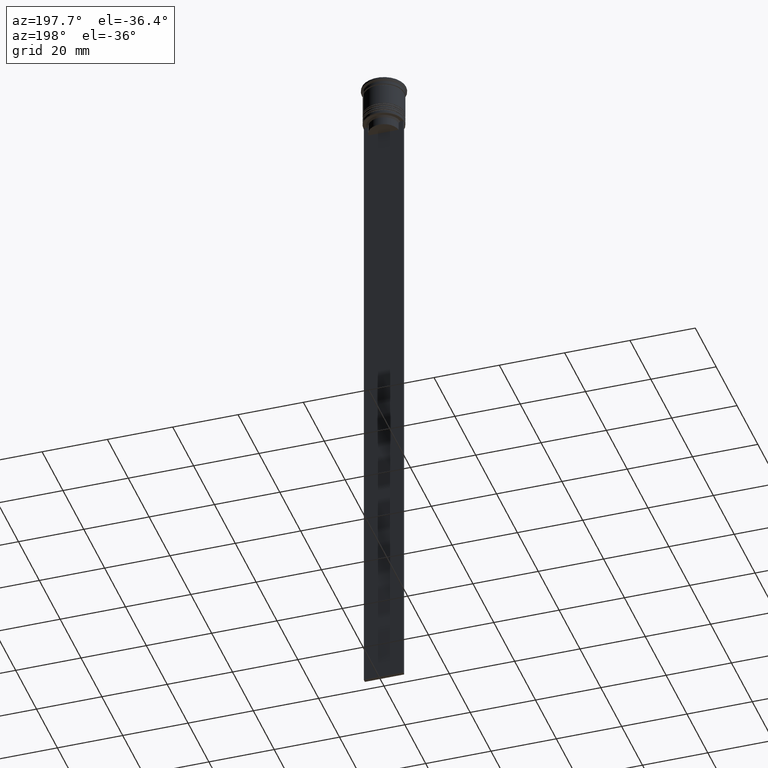
[diagram: clean part render]
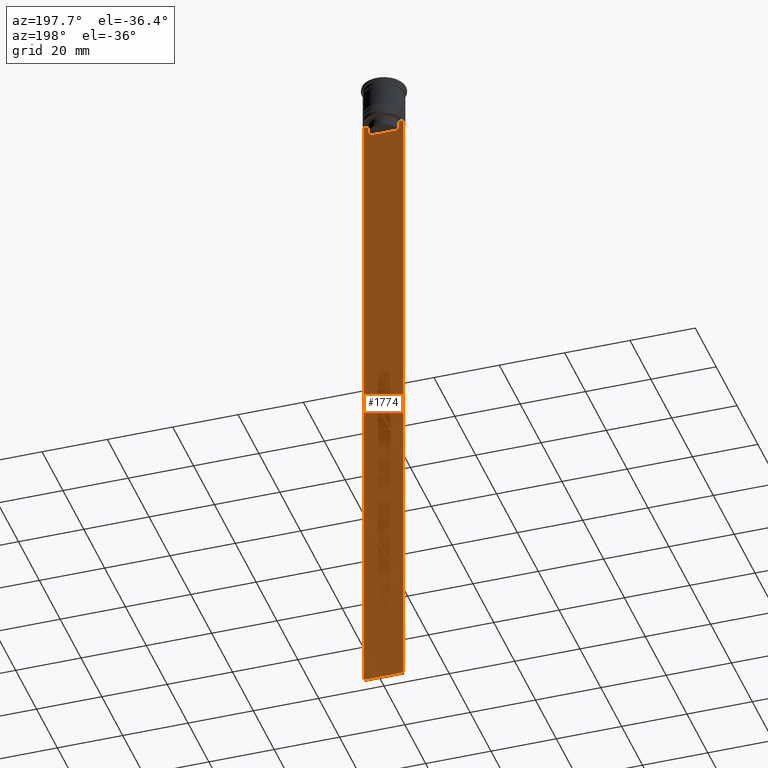
[diagram: same view with one face highlighted and labeled with its STEP entity id]
A machine part, auxiliary view. The second image highlights one B-rep face of the part: STEP entity #1774.
In plain terms, the highlighted planar face has unit normal (0, -1, -0).
Its self-contained STEP definition (entity closure, byte-faithful):
#11 = EDGE_CURVE ( 'NONE', #1795, #2253, #2249, .T. ) ;
#28 = CARTESIAN_POINT ( 'NONE',  ( 6.000000000000016875, 0.4999999999999982792, -0.4584054212077061097 ) ) ;
#60 = ORIENTED_EDGE ( 'NONE', *, *, #247, .T. ) ;
#74 = LINE ( 'NONE', #940, #1858 ) ;
#159 = VECTOR ( 'NONE', #2206, 1000.000000000000000 ) ;
#171 = CARTESIAN_POINT ( 'NONE',  ( 4.623040125285526436, 0.4999999999999982792, 0.000000000000000000 ) ) ;
#195 = CARTESIAN_POINT ( 'NONE',  ( -4.623040125285526436, 0.4999999999999982792, 0.000000000000000000 ) ) ;
#205 = DIRECTION ( 'NONE',  ( -0.000000000000000000, -0.000000000000000000, 1.000000000000000000 ) ) ;
#231 = VECTOR ( 'NONE', #748, 1000.000000000000000 ) ;
#247 = EDGE_CURVE ( 'NONE', #1840, #1304, #656, .T. ) ;
#256 = VERTEX_POINT ( 'NONE', #1626 ) ;
#267 = EDGE_LOOP ( 'NONE', ( #713, #2112, #60, #620, #1142, #2262, #2034, #1202, #1618, #581 ) ) ;
#270 = DIRECTION ( 'NONE',  ( 0.000000000000000000, 0.000000000000000000, -1.000000000000000000 ) ) ;
#280 = CARTESIAN_POINT ( 'NONE',  ( -5.999999999999983125, 0.4999999999999982792, -212.5000000000000284 ) ) ;
#289 = CARTESIAN_POINT ( 'NONE',  ( 4.623040125285526436, 0.4999999999999987232, -15.50000000000000000 ) ) ;
#292 = CARTESIAN_POINT ( 'NONE',  ( 6.000000000000016875, 0.4999999999999982792, -0.4584054212077061097 ) ) ;
#335 = AXIS2_PLACEMENT_3D ( 'NONE', #292, #1715, #270 ) ;
#341 = CARTESIAN_POINT ( 'NONE',  ( -4.623040125285526436, 0.4999999999999982792, -13.00000000000000178 ) ) ;
#370 = EDGE_CURVE ( 'NONE', #1304, #1000, #1093, .T. ) ;
#392 = CARTESIAN_POINT ( 'NONE',  ( -5.999999999999983125, 0.4999999999999982792, -0.4584054212077061097 ) ) ;
#403 = CARTESIAN_POINT ( 'NONE',  ( -4.623040125285526436, 0.4999999999999987232, -15.50000000000000000 ) ) ;
#406 = DIRECTION ( 'NONE',  ( -1.000000000000000000, 0.000000000000000000, 0.000000000000000000 ) ) ;
#519 = CARTESIAN_POINT ( 'NONE',  ( -4.958169823806762189, 0.4999999999999982792, -12.66670956677067750 ) ) ;
#522 = CARTESIAN_POINT ( 'NONE',  ( -4.623040125285526436, 0.4999999999999982792, -13.00000000000000178 ) ) ;
#537 = VECTOR ( 'NONE', #1863, 1000.000000000000000 ) ;
#568 = LINE ( 'NONE', #736, #878 ) ;
#581 = ORIENTED_EDGE ( 'NONE', *, *, #1290, .F. ) ;
#620 = ORIENTED_EDGE ( 'NONE', *, *, #370, .T. ) ;
#633 = B_SPLINE_CURVE_WITH_KNOTS ( 'NONE', 3,
 ( #1800, #1092, #2342, #1295 ),
 .UNSPECIFIED., .F., .F.,
 ( 4, 4 ),
 ( 0.02203698174624552433, 0.02275222543365896036 ),
 .UNSPECIFIED. ) ;
#656 = LINE ( 'NONE', #195, #231 ) ;
#705 = CARTESIAN_POINT ( 'NONE',  ( -4.790630915080666519, 0.4999999999999982792, -12.83338087185995313 ) ) ;
#711 = EDGE_CURVE ( 'NONE', #256, #1795, #568, .T. ) ;
#713 = ORIENTED_EDGE ( 'NONE', *, *, #2086, .T. ) ;
#736 = CARTESIAN_POINT ( 'NONE',  ( 6.000000000000016875, 0.4999999999999982792, -12.50000000000000000 ) ) ;
#748 = DIRECTION ( 'NONE',  ( 0.000000000000000000, 0.000000000000000000, -1.000000000000000000 ) ) ;
#876 = CARTESIAN_POINT ( 'NONE',  ( 4.623040125285526436, 0.4999999999999982792, -13.00000000000000178 ) ) ;
#878 = VECTOR ( 'NONE', #1444, 1000.000000000000000 ) ;
#940 = CARTESIAN_POINT ( 'NONE',  ( 6.000000000000016875, 0.4999999999999982792, -212.5000000000000284 ) ) ;
#983 = LINE ( 'NONE', #1361, #1265 ) ;
#988 = PLANE ( 'NONE',  #335 ) ;
#1000 = VERTEX_POINT ( 'NONE', #289 ) ;
#1011 = CARTESIAN_POINT ( 'NONE',  ( 6.000000000000016875, 0.4999999999999982792, -12.50000000000000000 ) ) ;
#1050 = CARTESIAN_POINT ( 'NONE',  ( -5.125670687822231564, 0.4999999999999982792, -12.50000000000000000 ) ) ;
#1060 = CARTESIAN_POINT ( 'NONE',  ( 6.000000000000016875, 0.4999999999999982792, -212.5000000000000284 ) ) ;
#1084 = VECTOR ( 'NONE', #205, 1000.000000000000000 ) ;
#1092 = CARTESIAN_POINT ( 'NONE',  ( 4.790630799407576745, 0.4999999999999982792, -12.83338098686239093 ) ) ;
#1093 = LINE ( 'NONE', #1809, #159 ) ;
#1142 = ORIENTED_EDGE ( 'NONE', *, *, #1437, .T. ) ;
#1153 = LINE ( 'NONE', #392, #537 ) ;
#1174 = VERTEX_POINT ( 'NONE', #1990 ) ;
#1202 = ORIENTED_EDGE ( 'NONE', *, *, #11, .T. ) ;
#1265 = VECTOR ( 'NONE', #2076, 1000.000000000000000 ) ;
#1290 = EDGE_CURVE ( 'NONE', #1174, #2104, #1153, .T. ) ;
#1295 = CARTESIAN_POINT ( 'NONE',  ( 5.125670687822231564, 0.4999999999999982792, -12.50000000000000000 ) ) ;
#1304 = VERTEX_POINT ( 'NONE', #403 ) ;
#1361 = CARTESIAN_POINT ( 'NONE',  ( 6.000000000000016875, 0.4999999999999982792, -12.50000000000000000 ) ) ;
#1437 = EDGE_CURVE ( 'NONE', #1000, #2296, #1631, .T. ) ;
#1444 = DIRECTION ( 'NONE',  ( 1.000000000000000000, 0.000000000000000000, 0.000000000000000000 ) ) ;
#1516 = FACE_OUTER_BOUND ( 'NONE', #267, .T. ) ;
#1618 = ORIENTED_EDGE ( 'NONE', *, *, #1974, .T. ) ;
#1626 = CARTESIAN_POINT ( 'NONE',  ( 5.125670687822231564, 0.4999999999999982792, -12.50000000000000000 ) ) ;
#1631 = LINE ( 'NONE', #171, #1084 ) ;
#1653 = B_SPLINE_CURVE_WITH_KNOTS ( 'NONE', 3,
 ( #1050, #519, #705, #341 ),
 .UNSPECIFIED., .F., .F.,
 ( 4, 4 ),
 ( 0.008759809102772707357, 0.009468778395565351919 ),
 .UNSPECIFIED. ) ;
#1715 = DIRECTION ( 'NONE',  ( 0.000000000000000000, -1.000000000000000000, -0.000000000000000000 ) ) ;
#1774 = ADVANCED_FACE ( 'NONE', ( #1516 ), #988, .F. ) ;
#1795 = VERTEX_POINT ( 'NONE', #1011 ) ;
#1800 = CARTESIAN_POINT ( 'NONE',  ( 4.623040125285526436, 0.4999999999999982792, -13.00000000000000178 ) ) ;
#1809 = CARTESIAN_POINT ( 'NONE',  ( 0.000000000000000000, 0.4999999999999987232, -15.50000000000000000 ) ) ;
#1840 = VERTEX_POINT ( 'NONE', #522 ) ;
#1858 = VECTOR ( 'NONE', #406, 1000.000000000000000 ) ;
#1863 = DIRECTION ( 'NONE',  ( 0.000000000000000000, 0.000000000000000000, -1.000000000000000000 ) ) ;
#1872 = VECTOR ( 'NONE', #2197, 1000.000000000000000 ) ;
#1883 = EDGE_CURVE ( 'NONE', #2296, #256, #633, .T. ) ;
#1970 = VERTEX_POINT ( 'NONE', #2244 ) ;
#1974 = EDGE_CURVE ( 'NONE', #2253, #2104, #74, .T. ) ;
#1990 = CARTESIAN_POINT ( 'NONE',  ( -5.999999999999983125, 0.4999999999999985012, -12.50000000000000000 ) ) ;
#2034 = ORIENTED_EDGE ( 'NONE', *, *, #711, .T. ) ;
#2076 = DIRECTION ( 'NONE',  ( 1.000000000000000000, 0.000000000000000000, 0.000000000000000000 ) ) ;
#2086 = EDGE_CURVE ( 'NONE', #1174, #1970, #983, .T. ) ;
#2104 = VERTEX_POINT ( 'NONE', #280 ) ;
#2112 = ORIENTED_EDGE ( 'NONE', *, *, #2268, .T. ) ;
#2197 = DIRECTION ( 'NONE',  ( 0.000000000000000000, 0.000000000000000000, -1.000000000000000000 ) ) ;
#2206 = DIRECTION ( 'NONE',  ( 1.000000000000000000, 0.000000000000000000, 0.000000000000000000 ) ) ;
#2244 = CARTESIAN_POINT ( 'NONE',  ( -5.125670687822231564, 0.4999999999999982792, -12.50000000000000000 ) ) ;
#2249 = LINE ( 'NONE', #28, #1872 ) ;
#2253 = VERTEX_POINT ( 'NONE', #1060 ) ;
#2262 = ORIENTED_EDGE ( 'NONE', *, *, #1883, .T. ) ;
#2268 = EDGE_CURVE ( 'NONE', #1970, #1840, #1653, .T. ) ;
#2296 = VERTEX_POINT ( 'NONE', #876 ) ;
#2342 = CARTESIAN_POINT ( 'NONE',  ( 4.958169719475987058, 0.4999999999999982792, -12.66670967060858111 ) ) ;